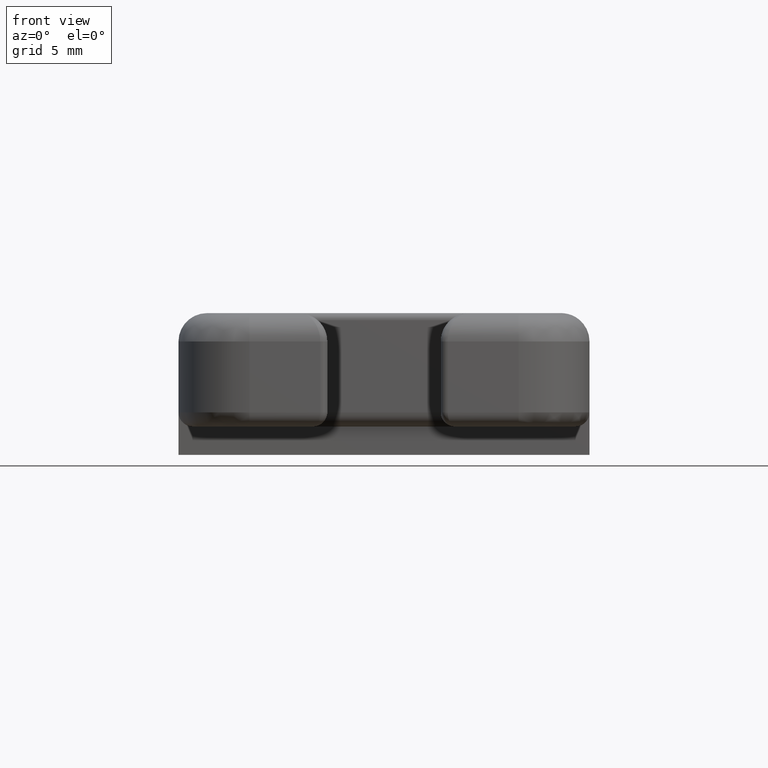
[diagram: clean part render]
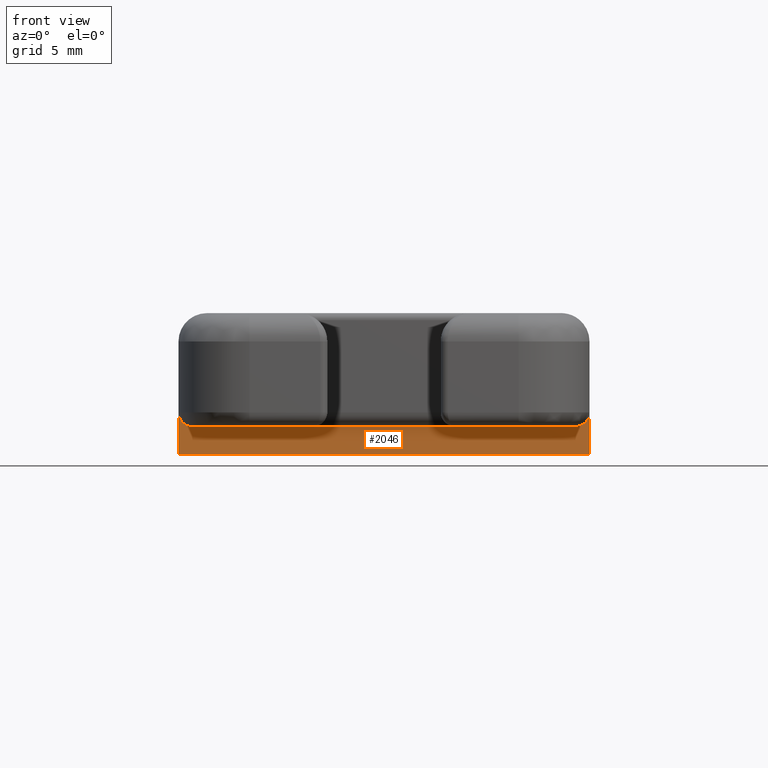
[diagram: same view with one face highlighted and labeled with its STEP entity id]
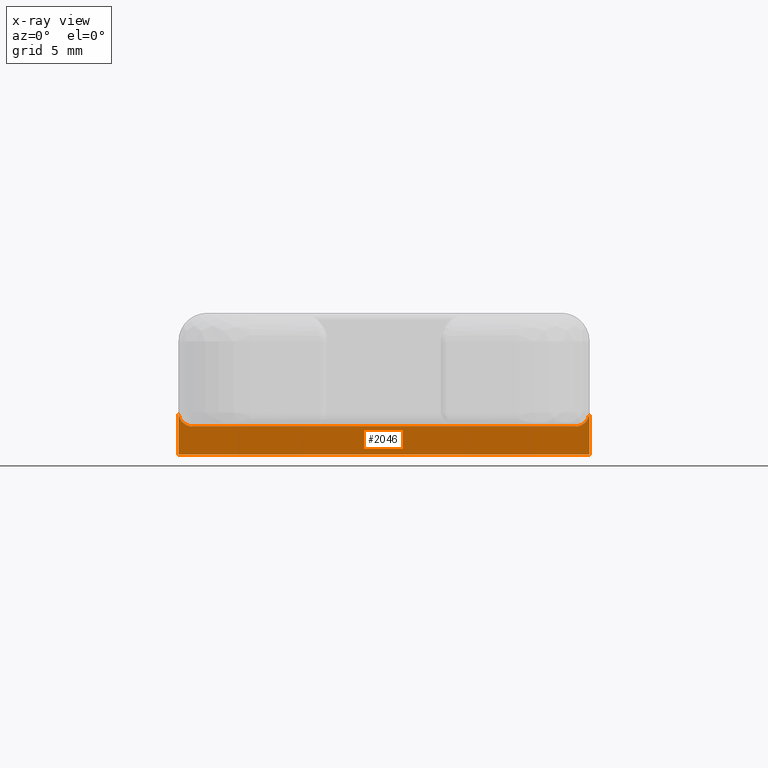
[diagram: x-ray of the same camera — body ghosted, the highlighted face saturated]
A machine part, front view. The second image highlights one B-rep face of the part: STEP entity #2046.
The next image is the same camera in x-ray: the body ghosted, the highlighted face saturated — about 0% of this face is hidden behind the body in this view.
In plain terms, the highlighted planar face has unit normal (0, 1, 0).
Its self-contained STEP definition (entity closure, byte-faithful):
#7=CARTESIAN_POINT('',(14.500000000004547,0.0,0.0));
#8=VERTEX_POINT('',#7);
#17=CARTESIAN_POINT('',(-14.500000000004547,0.0,0.0));
#18=VERTEX_POINT('',#17);
#19=CARTESIAN_POINT('',(-14.500000000004547,0.0,0.0));
#20=DIRECTION('',(1.0,0.0,0.0));
#21=VECTOR('',#20,29.000000000009095);
#22=LINE('',#19,#21);
#23=EDGE_CURVE('',#18,#8,#22,.T.);
#1998=CARTESIAN_POINT('',(-17.400537490840179,0.0,-3.999999999999091));
#1999=DIRECTION('',(0.0,1.0,0.0));
#2000=DIRECTION('',(0.0,0.0,1.0));
#2001=AXIS2_PLACEMENT_3D('',#1998,#1999,#2000);
#2002=PLANE('',#2001);
#2003=CARTESIAN_POINT('',(-14.500000000004547,0.0,3.000000000000910));
#2004=VERTEX_POINT('',#2003);
#2005=CARTESIAN_POINT('',(-13.500000000004547,0.0,2.000000000000910));
#2006=VERTEX_POINT('',#2005);
#2007=CARTESIAN_POINT('',(-13.500000000004547,0.0,3.000000000000910));
#2008=DIRECTION('',(0.0,-1.0,0.0));
#2009=DIRECTION('',(-1.0,0.0,0.0));
#2010=AXIS2_PLACEMENT_3D('',#2007,#2008,#2009);
#2011=CIRCLE('',#2010,1.0);
#2012=EDGE_CURVE('',#2004,#2006,#2011,.T.);
#2013=ORIENTED_EDGE('',*,*,#2012,.F.);
#2014=CARTESIAN_POINT('',(-14.500000000004547,0.0,0.0));
#2015=DIRECTION('',(0.0,0.0,1.0));
#2016=VECTOR('',#2015,3.000000000000910);
#2017=LINE('',#2014,#2016);
#2018=EDGE_CURVE('',#18,#2004,#2017,.T.);
#2019=ORIENTED_EDGE('',*,*,#2018,.F.);
#2020=ORIENTED_EDGE('',*,*,#23,.T.);
#2021=CARTESIAN_POINT('',(14.500000000004547,0.0,3.000000000000910));
#2022=VERTEX_POINT('',#2021);
#2023=CARTESIAN_POINT('',(14.500000000004547,0.0,0.0));
#2024=DIRECTION('',(0.0,0.0,1.0));
#2025=VECTOR('',#2024,3.000000000000910);
#2026=LINE('',#2023,#2025);
#2027=EDGE_CURVE('',#8,#2022,#2026,.T.);
#2028=ORIENTED_EDGE('',*,*,#2027,.T.);
#2029=CARTESIAN_POINT('',(13.500000000004547,0.0,2.000000000000910));
#2030=VERTEX_POINT('',#2029);
#2031=CARTESIAN_POINT('',(13.500000000004547,0.0,3.000000000000910));
#2032=DIRECTION('',(0.0,1.0,0.0));
#2033=DIRECTION('',(1.0,0.0,0.0));
#2034=AXIS2_PLACEMENT_3D('',#2031,#2032,#2033);
#2035=CIRCLE('',#2034,1.0);
#2036=EDGE_CURVE('',#2022,#2030,#2035,.T.);
#2037=ORIENTED_EDGE('',*,*,#2036,.T.);
#2038=CARTESIAN_POINT('',(-13.500000000004547,0.0,2.000000000000910));
#2039=DIRECTION('',(1.0,0.0,0.0));
#2040=VECTOR('',#2039,27.000000000009095);
#2041=LINE('',#2038,#2040);
#2042=EDGE_CURVE('',#2006,#2030,#2041,.T.);
#2043=ORIENTED_EDGE('',*,*,#2042,.F.);
#2044=EDGE_LOOP('',(#2013,#2019,#2020,#2028,#2037,#2043));
#2045=FACE_OUTER_BOUND('',#2044,.T.);
#2046=ADVANCED_FACE('',(#2045),#2002,.F.);